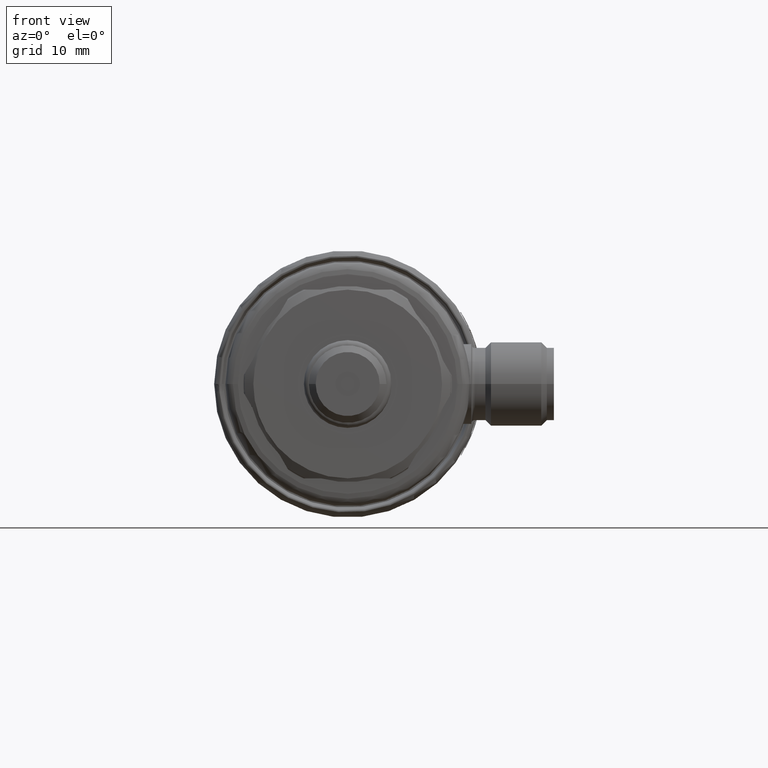
[diagram: clean part render]
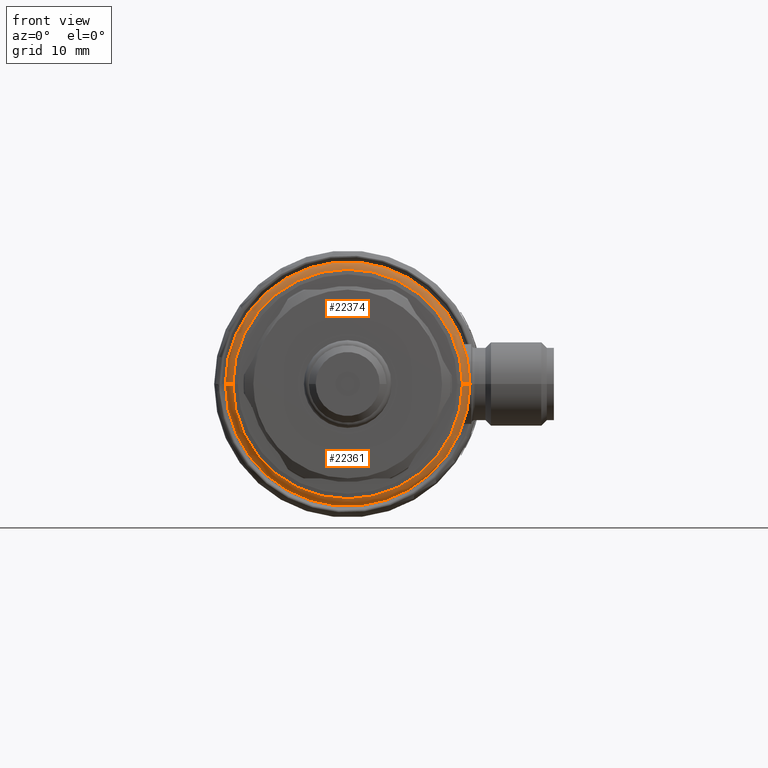
[diagram: same view with one multi-face feature highlighted, each face labeled with its STEP entity id]
A machine part, front view. The highlighted faces form ONE feature: a constant-radius fillet chain: 2 tangent blend faces with common blend radius 1.3 mm. The faces share edges in the B-rep.
Their STEP definitions:
[1] entity #22361 (Torus):
#3172=CARTESIAN_POINT('',(0.E0,3.864804149755E-1,0.E0));
#3173=DIRECTION('',(0.E0,1.E0,0.E0));
#3174=DIRECTION('',(1.E0,0.E0,-1.786189096971E-9));
#3175=AXIS2_PLACEMENT_3D('',#3172,#3173,#3174);
#3177=CARTESIAN_POINT('',(-6.377952755906E-1,3.864804149755E-1,0.E0));
#3178=DIRECTION('',(0.E0,0.E0,1.E0));
#3179=DIRECTION('',(-1.E0,0.E0,0.E0));
#3180=AXIS2_PLACEMENT_3D('',#3177,#3178,#3179);
#3182=CARTESIAN_POINT('',(0.E0,3.360768685615E-1,0.E0));
#3183=DIRECTION('',(0.E0,-1.E0,0.E0));
#3184=DIRECTION('',(-1.E0,0.E0,0.E0));
#3185=AXIS2_PLACEMENT_3D('',#3182,#3183,#3184);
#3187=CARTESIAN_POINT('',(6.377952755906E-1,3.864804149755E-1,0.E0));
#3188=DIRECTION('',(0.E0,0.E0,-1.E0));
#3189=DIRECTION('',(1.E0,0.E0,0.E0));
#3190=AXIS2_PLACEMENT_3D('',#3187,#3188,#3189);
#18742=CARTESIAN_POINT('',(6.889763779528E-1,3.864804149755E-1,
-6.153218542900E-10));
#18743=VERTEX_POINT('',#18742);
#18744=CARTESIAN_POINT('',(-6.889763779528E-1,3.864804149755E-1,0.E0));
#18745=VERTEX_POINT('',#18744);
#18749=CARTESIAN_POINT('',(6.466827807469E-1,3.360768685615E-1,0.E0));
#18750=VERTEX_POINT('',#18749);
#18751=CARTESIAN_POINT('',(-6.466827807469E-1,3.360768685615E-1,0.E0));
#18752=VERTEX_POINT('',#18751);
#22347=CARTESIAN_POINT('',(0.E0,3.864804149755E-1,0.E0));
#22348=DIRECTION('',(0.E0,-1.E0,0.E0));
#22349=DIRECTION('',(-1.E0,0.E0,0.E0));
#22350=AXIS2_PLACEMENT_3D('',#22347,#22348,#22349);
#22351=TOROIDAL_SURFACE('',#22350,6.377952755906E-1,5.118110236220E-2);
#22353=ORIENTED_EDGE('',*,*,#22352,.F.);
#22354=ORIENTED_EDGE('',*,*,#22334,.T.);
#22356=ORIENTED_EDGE('',*,*,#22355,.T.);
#22358=ORIENTED_EDGE('',*,*,#22357,.T.);
#22359=EDGE_LOOP('',(#22353,#22354,#22356,#22358));
#22360=FACE_OUTER_BOUND('',#22359,.F.);
#3176=CIRCLE('',#3175,6.889763779528E-1);
#3181=CIRCLE('',#3180,5.118110236220E-2);
#3186=CIRCLE('',#3185,6.466827807469E-1);
#3191=CIRCLE('',#3190,5.118110236220E-2);
#22334=EDGE_CURVE('',#18743,#18745,#3176,.T.);
#22352=EDGE_CURVE('',#18743,#18750,#3191,.T.);
#22355=EDGE_CURVE('',#18745,#18752,#3181,.T.);
#22357=EDGE_CURVE('',#18752,#18750,#3186,.T.);
#22361=ADVANCED_FACE('',(#22360),#22351,.T.);
[2] entity #22374 (Torus):
#3177=CARTESIAN_POINT('',(-6.377952755906E-1,3.864804149755E-1,0.E0));
#3178=DIRECTION('',(0.E0,0.E0,1.E0));
#3179=DIRECTION('',(-1.E0,0.E0,0.E0));
#3180=AXIS2_PLACEMENT_3D('',#3177,#3178,#3179);
#3187=CARTESIAN_POINT('',(6.377952755906E-1,3.864804149755E-1,0.E0));
#3188=DIRECTION('',(0.E0,0.E0,-1.E0));
#3189=DIRECTION('',(1.E0,0.E0,0.E0));
#3190=AXIS2_PLACEMENT_3D('',#3187,#3188,#3189);
#3192=CARTESIAN_POINT('',(0.E0,3.360768685615E-1,0.E0));
#3193=DIRECTION('',(0.E0,-1.E0,0.E0));
#3194=DIRECTION('',(1.E0,0.E0,0.E0));
#3195=AXIS2_PLACEMENT_3D('',#3192,#3193,#3194);
#3197=CARTESIAN_POINT('',(0.E0,3.864804149755E-1,0.E0));
#3198=DIRECTION('',(0.E0,1.E0,0.E0));
#3199=DIRECTION('',(-1.E0,0.E0,0.E0));
#3200=AXIS2_PLACEMENT_3D('',#3197,#3198,#3199);
#18742=CARTESIAN_POINT('',(6.889763779528E-1,3.864804149755E-1,
-6.153218542900E-10));
#18743=VERTEX_POINT('',#18742);
#18744=CARTESIAN_POINT('',(-6.889763779528E-1,3.864804149755E-1,0.E0));
#18745=VERTEX_POINT('',#18744);
#18749=CARTESIAN_POINT('',(6.466827807469E-1,3.360768685615E-1,0.E0));
#18750=VERTEX_POINT('',#18749);
#18751=CARTESIAN_POINT('',(-6.466827807469E-1,3.360768685615E-1,0.E0));
#18752=VERTEX_POINT('',#18751);
#22362=CARTESIAN_POINT('',(0.E0,3.864804149755E-1,0.E0));
#22363=DIRECTION('',(0.E0,-1.E0,0.E0));
#22364=DIRECTION('',(-1.E0,0.E0,0.E0));
#22365=AXIS2_PLACEMENT_3D('',#22362,#22363,#22364);
#22366=TOROIDAL_SURFACE('',#22365,6.377952755906E-1,5.118110236220E-2);
#22367=ORIENTED_EDGE('',*,*,#22352,.T.);
#22369=ORIENTED_EDGE('',*,*,#22368,.T.);
#22370=ORIENTED_EDGE('',*,*,#22355,.F.);
#22371=ORIENTED_EDGE('',*,*,#22320,.T.);
#22372=EDGE_LOOP('',(#22367,#22369,#22370,#22371));
#22373=FACE_OUTER_BOUND('',#22372,.F.);
#3181=CIRCLE('',#3180,5.118110236220E-2);
#3191=CIRCLE('',#3190,5.118110236220E-2);
#3196=CIRCLE('',#3195,6.466827807469E-1);
#3201=CIRCLE('',#3200,6.889763779528E-1);
#22320=EDGE_CURVE('',#18745,#18743,#3201,.T.);
#22352=EDGE_CURVE('',#18743,#18750,#3191,.T.);
#22355=EDGE_CURVE('',#18745,#18752,#3181,.T.);
#22368=EDGE_CURVE('',#18750,#18752,#3196,.T.);
#22374=ADVANCED_FACE('',(#22373),#22366,.T.);